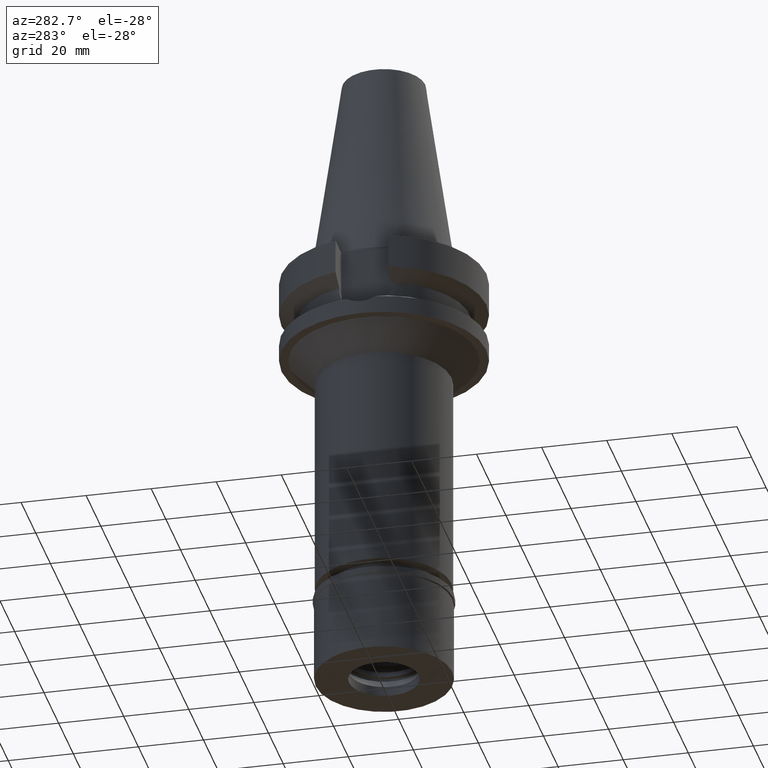
[diagram: clean part render]
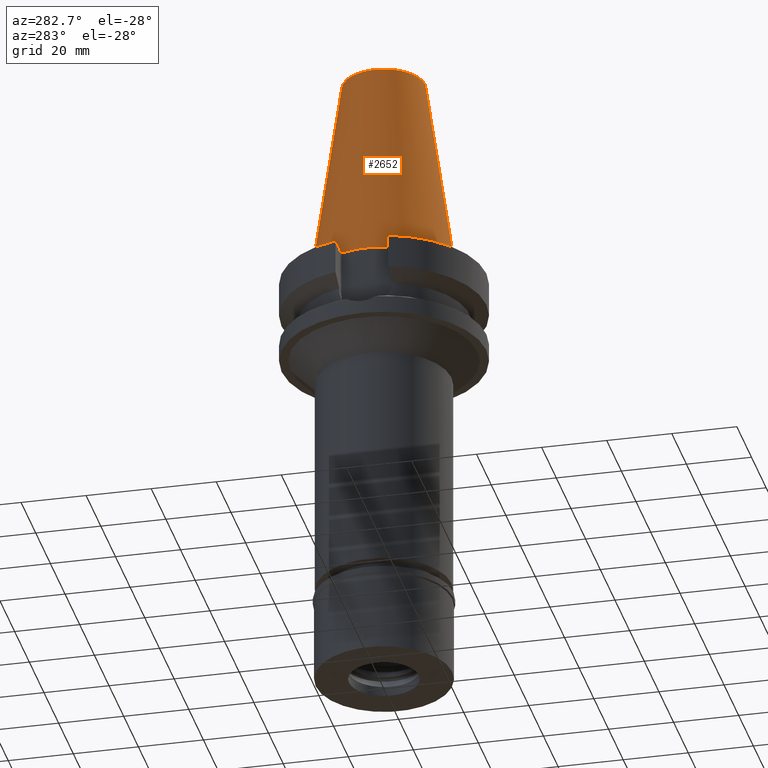
[diagram: same view with one face highlighted and labeled with its STEP entity id]
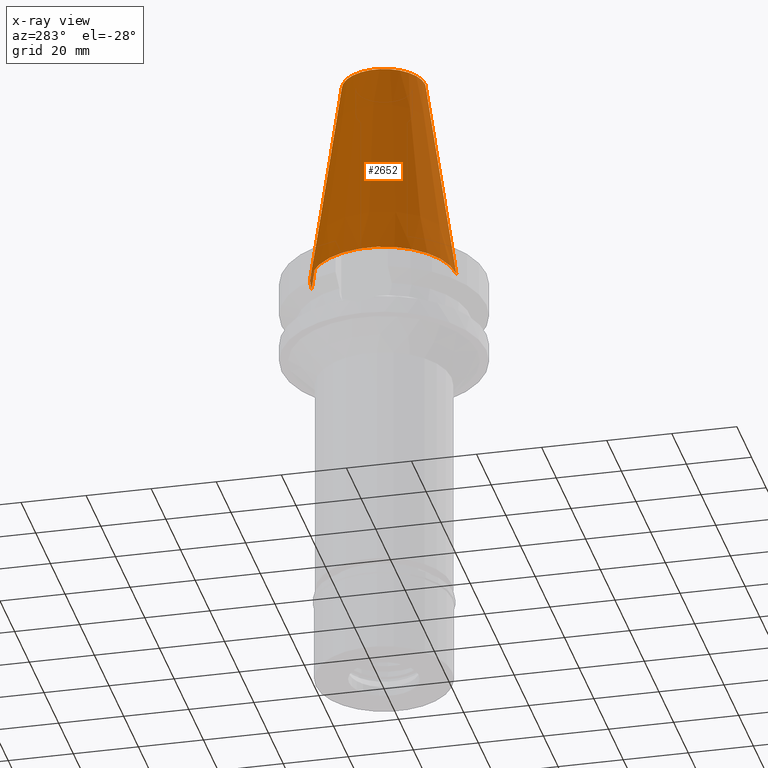
[diagram: x-ray of the same camera — body ghosted, the highlighted face saturated]
A machine part, auxiliary view. The second image highlights one B-rep face of the part: STEP entity #2652.
The next image is the same camera in x-ray: the body ghosted, the highlighted face saturated — about 0% of this face is hidden behind the body in this view.
In plain terms, the highlighted conical surface has half-angle 8.297 deg.
Its self-contained STEP definition (entity closure, byte-faithful):
#175 = AXIS2_PLACEMENT_3D ( 'NONE', #2625, #226, #1400 ) ;
#204 = VECTOR ( 'NONE', #1346, 1000.000000000000114 ) ;
#226 = DIRECTION ( 'NONE',  ( 0.0000000000000000000, 0.0000000000000000000, -1.000000000000000000 ) ) ;
#362 = CARTESIAN_POINT ( 'NONE',  ( 0.0000000000000000000, -12.68766899429999917, 65.40000000000000568 ) ) ;
#401 = CARTESIAN_POINT ( 'NONE',  ( 0.0000000000000000000, -12.68766899429999917, 65.40000000000000568 ) ) ;
#475 = DIRECTION ( 'NONE',  ( 0.0000000000000000000, -1.000000000000000000, 0.0000000000000000000 ) ) ;
#547 = CIRCLE ( 'NONE', #2670, 12.68766899429999917 ) ;
#638 = VERTEX_POINT ( 'NONE', #2856 ) ;
#637 = CARTESIAN_POINT ( 'NONE',  ( 0.0000000000000000000, 22.22500000000000142, 1.421085471519999843E-14 ) ) ;
#666 = DIRECTION ( 'NONE',  ( 0.0000000000000000000, 0.0000000000000000000, -1.000000000000000000 ) ) ;
#714 = ORIENTED_EDGE ( 'NONE', *, *, #1192, .T. ) ;
#746 = EDGE_CURVE ( 'NONE', #638, #1566, #1578, .T. ) ;
#748 = ORIENTED_EDGE ( 'NONE', *, *, #1456, .T. ) ;
#1124 = CARTESIAN_POINT ( 'NONE',  ( 0.0000000000000000000, 0.0000000000000000000, 32.70000000000000284 ) ) ;
#1192 = EDGE_CURVE ( 'NONE', #3049, #1566, #2356, .T. ) ;
#1346 = DIRECTION ( 'NONE',  ( 0.0000000000000000000, 0.1443043893539925626, -0.9895333461855498891 ) ) ;
#1400 = DIRECTION ( 'NONE',  ( 0.0000000000000000000, -1.000000000000000000, 0.0000000000000000000 ) ) ;
#1456 = EDGE_CURVE ( 'NONE', #3112, #3049, #547, .T. ) ;
#1566 = VERTEX_POINT ( 'NONE', #637 ) ;
#1578 = CIRCLE ( 'NONE', #175, 22.22500000000000142 ) ;
#1595 = DIRECTION ( 'NONE',  ( 0.0000000000000000000, -1.000000000000000000, 0.0000000000000000000 ) ) ;
#1666 = DIRECTION ( 'NONE',  ( 0.0000000000000000000, 0.0000000000000000000, -1.000000000000000000 ) ) ;
#1667 = AXIS2_PLACEMENT_3D ( 'NONE', #1124, #666, #1595 ) ;
#1846 = DIRECTION ( 'NONE',  ( 0.0000000000000000000, -0.1443043893539925626, -0.9895333461855498891 ) ) ;
#2082 = CARTESIAN_POINT ( 'NONE',  ( 0.0000000000000000000, 12.68766899429999917, 65.40000000000000568 ) ) ;
#2130 = CONICAL_SURFACE ( 'NONE', #1667, 17.45633449714999941, 0.1448099680379422438 ) ;
#2255 = EDGE_LOOP ( 'NONE', ( #2708, #2265, #748, #714 ) ) ;
#2265 = ORIENTED_EDGE ( 'NONE', *, *, #2727, .F. ) ;
#2356 = LINE ( 'NONE', #2082, #204 ) ;
#2451 = CARTESIAN_POINT ( 'NONE',  ( 0.0000000000000000000, 0.0000000000000000000, 65.40000000000000568 ) ) ;
#2527 = VECTOR ( 'NONE', #1846, 1000.000000000000114 ) ;
#2554 = LINE ( 'NONE', #362, #2527 ) ;
#2625 = CARTESIAN_POINT ( 'NONE',  ( 0.0000000000000000000, 0.0000000000000000000, 0.0000000000000000000 ) ) ;
#2652 = ADVANCED_FACE ( 'NONE', ( #2778 ), #2130, .T. ) ;
#2670 = AXIS2_PLACEMENT_3D ( 'NONE', #2451, #1666, #475 ) ;
#2708 = ORIENTED_EDGE ( 'NONE', *, *, #746, .F. ) ;
#2727 = EDGE_CURVE ( 'NONE', #3112, #638, #2554, .T. ) ;
#2778 = FACE_OUTER_BOUND ( 'NONE', #2255, .T. ) ;
#2856 = CARTESIAN_POINT ( 'NONE',  ( 0.0000000000000000000, -22.22500000000000142, 0.0000000000000000000 ) ) ;
#2956 = CARTESIAN_POINT ( 'NONE',  ( 0.0000000000000000000, 12.68766899429999917, 65.40000000000000568 ) ) ;
#3049 = VERTEX_POINT ( 'NONE', #2956 ) ;
#3112 = VERTEX_POINT ( 'NONE', #401 ) ;